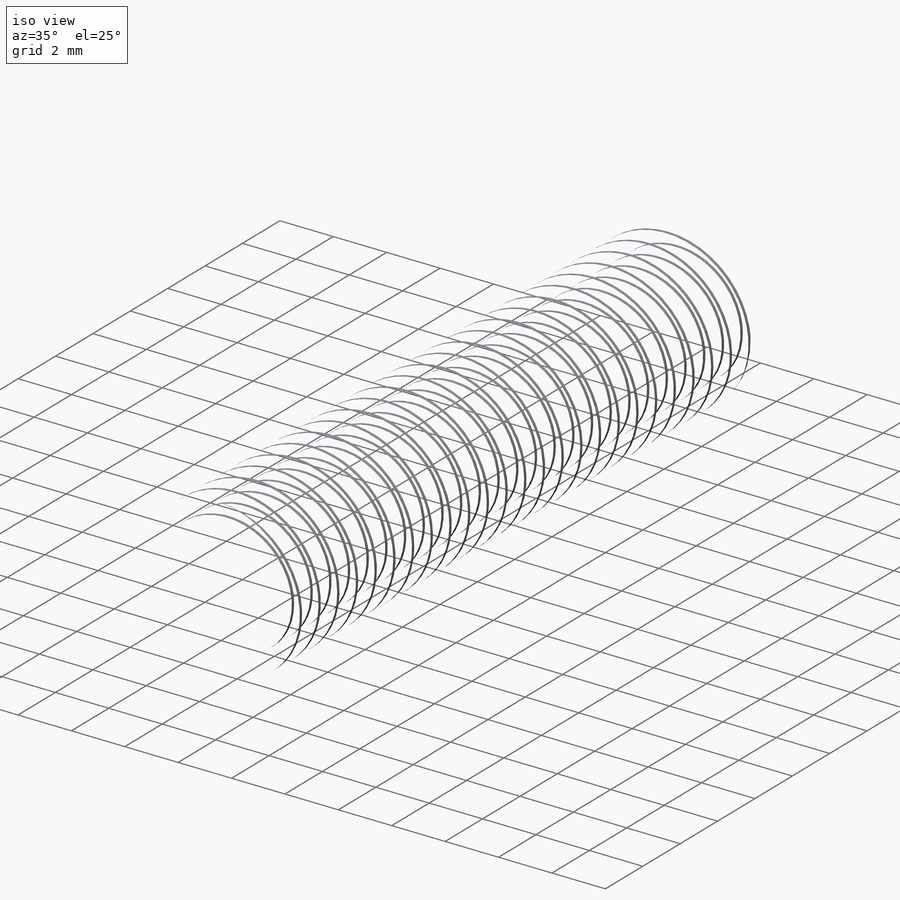
[diagram: iso view]
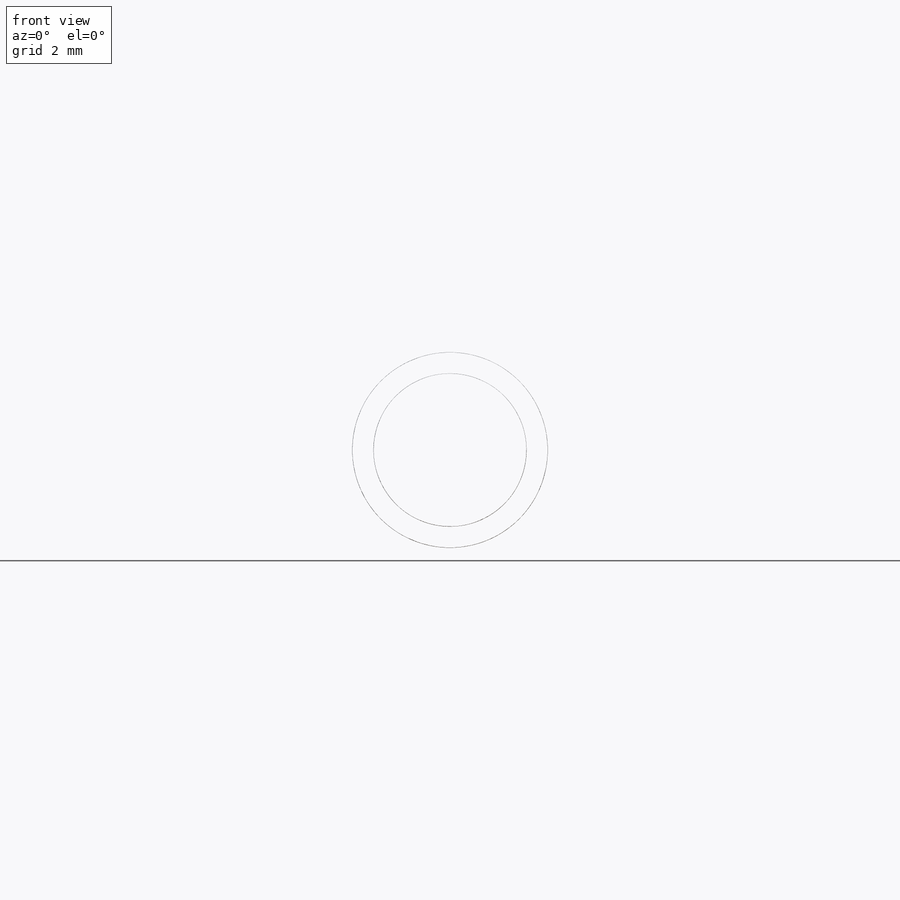
[diagram: front view]
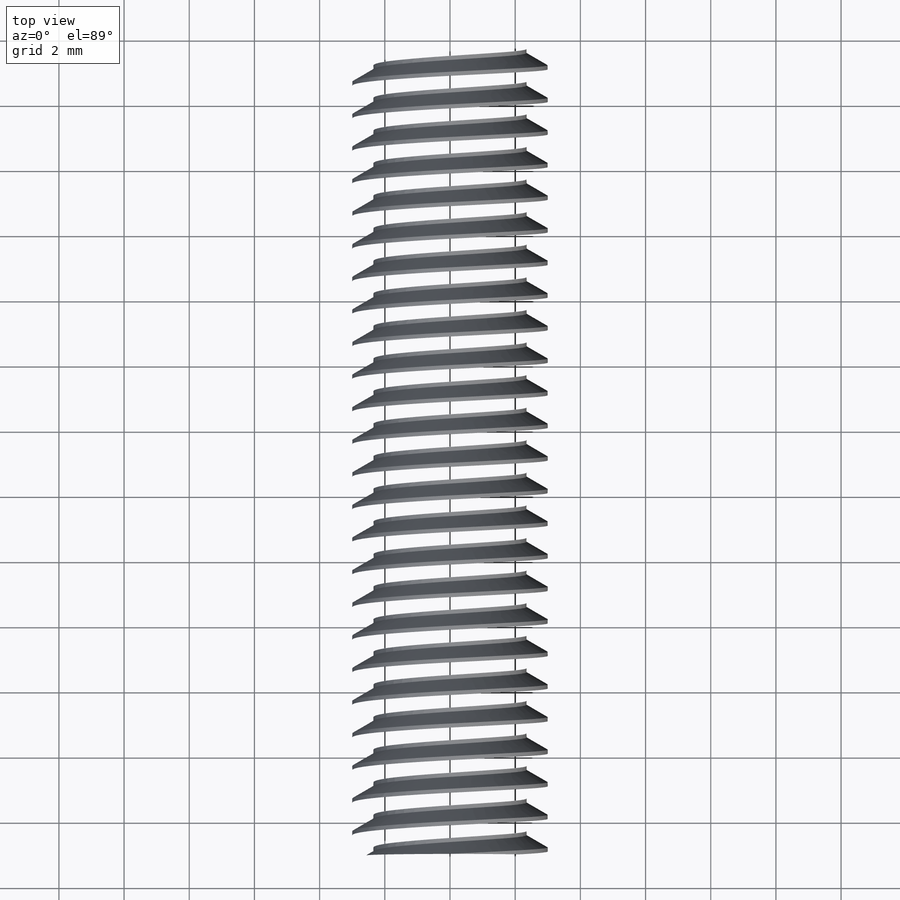
[diagram: top view]
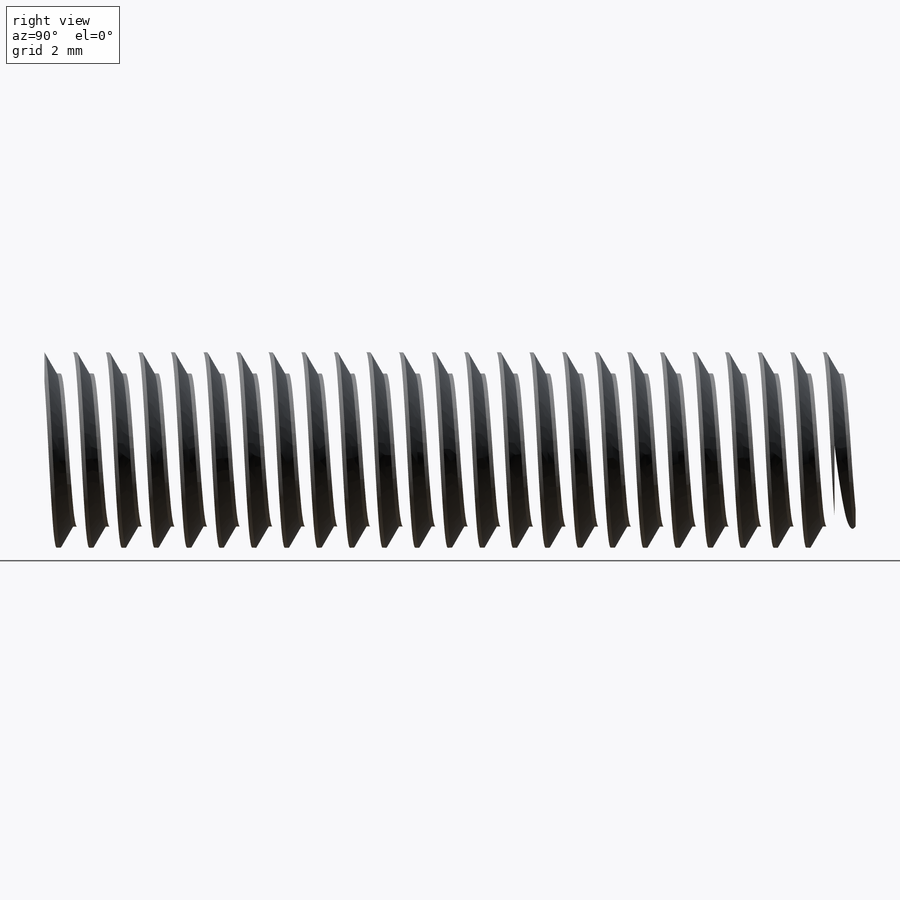
[diagram: right view]
SOLIDWORKS PART (.sldprt)
format: sldprt  version: not decoded by parser v0  size: 1,467,392 bytes
history: native  units: mm
features: sketch x22, cut_extrude x12, extrude x6, plane x3, material x1, shell x1, pattern_circular x1, helix x1, sweep x1, chamfer x1, cut_revolve x1 (+14 scaffold rows collapsed)
feature tree (64):
  scaffold x14  (default folders/planes/origin — collapsed)
  material  "Material <not specified>"
  sketch  "Sketch1"  dims[c1.D1=27.94mm c1.D2=33.528mm c1.D5=4.2mm c1.D7=7.3152mm c2.D1=25.4mm c2.D2=38.1mm c2.D3=64.516mm c2.D4=64.516mm c2.D6=15.748mm c2.D7=15.748mm c2.D8=30.48mm c2.D9=40.64mm c2.D10=2.794mm c2.D0=2.794mm c2.D11=7.366mm c3.D8=40.64mm c3.D6=15.748mm c3.D3=64.516mm c3.D4=82.55mm c4.D3=76.2mm]
  sketch  "Sketch2"  dims[D1=15.875mm D2=~33.460044mm D0=~33.460044mm]
  extrude  "Boss-Extrude1"  [1 undecoded]
  plane  "Plane1"  Offset=12.065mm
  sketch  "Sketch3"
  cut_extrude  "Cut-Extrude1"  [1 undecoded]
  sketch  "Sketch4"
  cut_extrude  "Cut-Extrude2"  [1 undecoded]
  plane  "Plane2"  Offset=11.049mm
  sketch  "Sketch5"  dims[D1=6.35mm]
  cut_extrude  "Cut-Extrude3"  [1 undecoded]
  shell  "Shell1"  Thickness=2.794mm
  sketch  "Sketch6"
  cut_extrude  "Cut-Extrude4"  [1 undecoded]
  sketch  "Sketch7"
  extrude  "Boss-Extrude2"  [1 undecoded]
  sketch  "Sketch8"  dims[c1.D1=~3.601968mm c2.D1=30.0deg c2.D2=~4.519591mm c3.D2=30.0deg c3.D1=9.144mm c4.D2=9.144mm c5.D2=60.0deg c5.D3=18.288mm c6.D3=60.0deg]
  cut_extrude  "Cut-Extrude5"  [1 undecoded]
  sketch  "Sketch9"
  cut_extrude  "Cut-Extrude6"  [1 undecoded]
  sketch  "Sketch10"
  cut_extrude  "Cut-Extrude7"  [1 undecoded]
  pattern_circular  "CirPattern1"  Count=2 Angle=360deg
  sketch  "Sketch16"  dims[D1=6.0mm]
  extrude  "Boss-Extrude5"  Depth=25mm
  sketch  "Sketch17"  dims[D1=0.0mm]
  helix  "Helix/Spiral1"  Pitch=26mm
  sketch  "Sketch18"  dims[D1=1.0mm D2=0.125mm]
  sweep  "Cut-Sweep1"
  sketch  "Sketch19"
  cut_extrude  "Cut-Extrude11"  [1 undecoded]
  sketch  "Sketch20"  dims[D1=10.0mm]
  extrude  "Boss-Extrude6"  Depth=6mm
  sketch  "Sketch21"  dims[D1=5.0mm]
  cut_extrude  "Cut-Extrude12"  Depth=3.75mm
  sketch  "Sketch22"
  cut_extrude  "Cut-Extrude13"  [1 undecoded]
  chamfer  "Chamfer1"  Distance=0.5mm Angle=45deg
  plane  "Plane3"  Offset=11.049mm
  sketch  "Sketch23"  dims[D1=7.0mm]
  extrude  "Boss-Extrude7"  Depth=4mm
  sketch  "Sketch24"  dims[D1=10.0mm]
  extrude  "Boss-Extrude8"  Depth=4mm
  sketch  "Sketch25"
  cut_extrude  "Cut-Extrude14"  [1 undecoded]
  sketch  "Sketch26"  dims[D1=0.0mm]
  cut_extrude  "Cut-Extrude15"  [1 undecoded]
  sketch  "Sketch27"
  cut_revolve  "Cut-Revolve1"  Angle=360deg
decode coverage: 22 of 46 modeling features carry decoded parameters
note: ~ marks probable driven/reference dimensions
note: 13 parameter values undecoded
summary: no parameter record found for 13 features
note: suppression state not decoded; provenance and decode notes live in map.json
